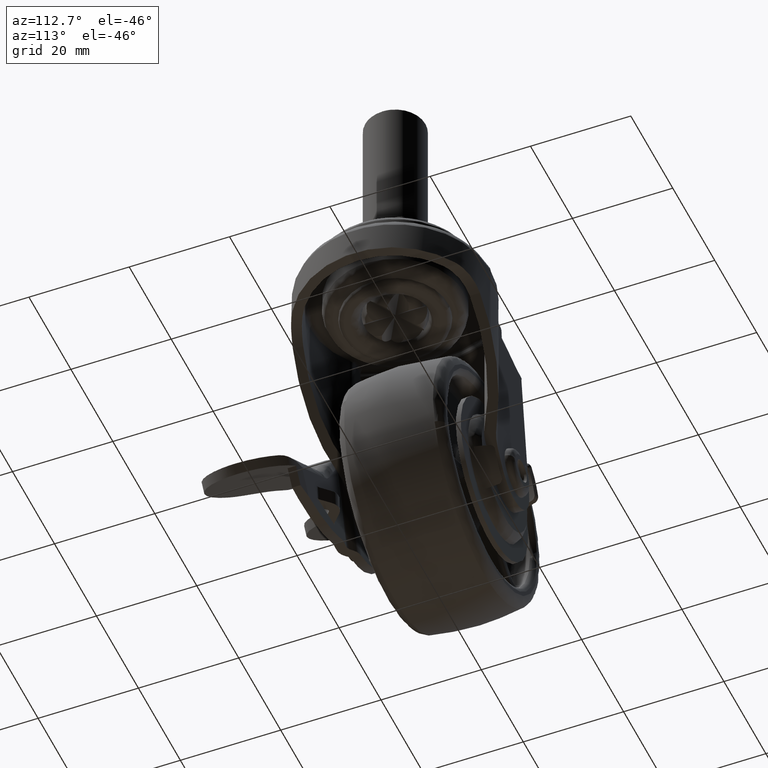
[diagram: clean part render]
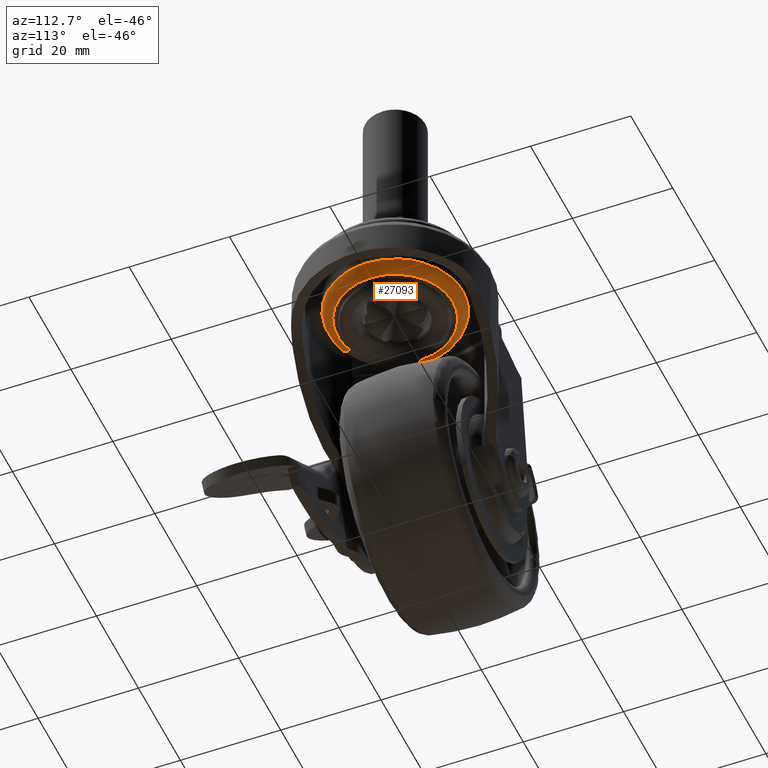
[diagram: same view with one face highlighted and labeled with its STEP entity id]
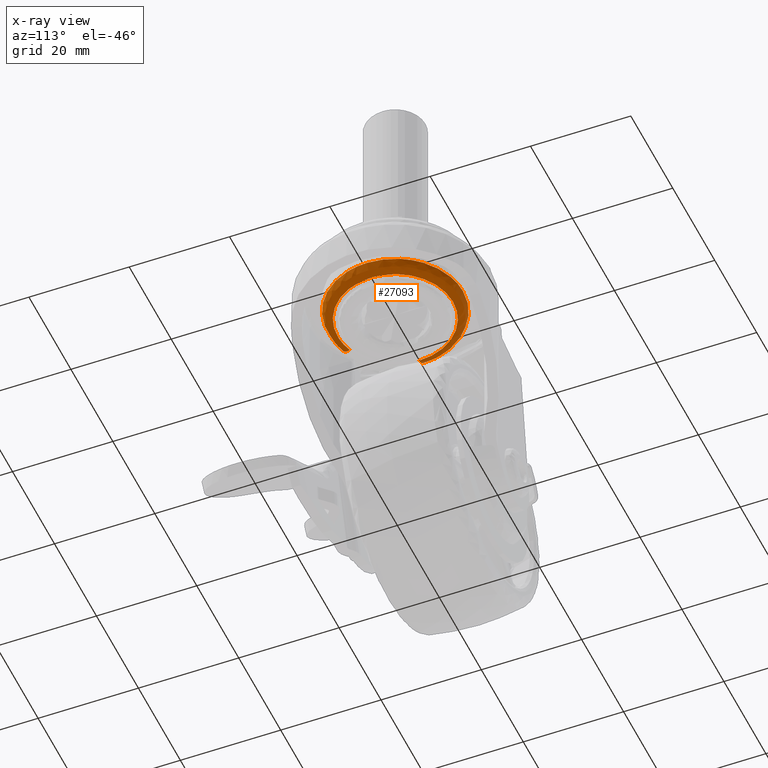
[diagram: x-ray of the same camera — body ghosted, the highlighted face saturated]
A machine part, auxiliary view. The second image highlights one B-rep face of the part: STEP entity #27093.
The next image is the same camera in x-ray: the body ghosted, the highlighted face saturated — about 0% of this face is hidden behind the body in this view.
In plain terms, the highlighted face is a freeform B-spline surface patch.
Its self-contained STEP definition (entity closure, byte-faithful):
#26200=CARTESIAN_POINT('',(30.628880784380691,9.462274842071377,28.716473000111659));
#26201=VERTEX_POINT('',#26200);
#26207=CARTESIAN_POINT('',(20.999998569665529,13.499999999999920,28.716472999999901));
#26208=VERTEX_POINT('',#26207);
#26209=CARTESIAN_POINT('',(30.628880784380691,9.462274842071377,28.716473000111659));
#26210=CARTESIAN_POINT('',(29.924550842241850,10.179287180653290,28.716473000112561));
#26211=CARTESIAN_POINT('',(28.572686183097311,11.277520031610241,28.716473000108369));
#26212=CARTESIAN_POINT('',(26.175660094810581,12.556604331544190,28.716473000086062));
#26213=CARTESIAN_POINT('',(23.708077010605450,13.322258579031830,28.716473000052641));
#26214=CARTESIAN_POINT('',(21.865473694107141,13.500095579423601,28.716473000017221));
#26215=CARTESIAN_POINT('',(20.999998569665529,13.499999999999920,28.716472999999901));
#26216=B_SPLINE_CURVE_WITH_KNOTS('',3,(#26209,#26210,#26211,#26212,#26213,#26214,#26215),.UNSPECIFIED.,.F.,.U.,(4,1,1,1,4),(0.000000017187901,3.015200077645986,5.192847839807891,8.124283217245782,10.720703377675180),.UNSPECIFIED.);
#26217=EDGE_CURVE('',#26201,#26208,#26216,.T.);
#26219=CARTESIAN_POINT('',(7.500000000000004,1.293422E-016,28.716472999419050));
#26220=VERTEX_POINT('',#26219);
#26221=CARTESIAN_POINT('',(20.999998569665529,13.499999999999920,28.716472999999901));
#26222=CARTESIAN_POINT('',(20.364937887052399,13.500028301695311,28.716472999986209));
#26223=CARTESIAN_POINT('',(19.122425687401059,13.412161523786651,28.716472999957670));
#26224=CARTESIAN_POINT('',(17.227195872810871,13.010979399461529,28.716472999908230));
#26225=CARTESIAN_POINT('',(15.278122709957000,12.293319278459220,28.716472999850861));
#26226=CARTESIAN_POINT('',(13.590208623193190,11.337090517780210,28.716472999793961));
#26227=CARTESIAN_POINT('',(11.987658561728880,10.109999056673770,28.716472999733011));
#26228=CARTESIAN_POINT('',(10.468452366051030,8.572205444302741,28.716472999667591));
#26229=CARTESIAN_POINT('',(9.229302812118181,6.729900726146979,28.716472999600061));
#26230=CARTESIAN_POINT('',(8.394573533565202,4.921846476759654,28.716472999544418));
#26231=CARTESIAN_POINT('',(7.713173247385839,2.816252076607755,28.716472999484161));
#26232=CARTESIAN_POINT('',(7.499652781979412,1.132115173780027,28.716472999443290));
#26233=CARTESIAN_POINT('',(7.500000000000004,1.293422E-016,28.716472999419050));
#26234=B_SPLINE_CURVE_WITH_KNOTS('',3,(#26221,#26222,#26223,#26224,#26225,#26226,#26227,#26228,#26229,#26230,#26231,#26232,#26233),.UNSPECIFIED.,.F.,.U.,(4,1,1,1,1,1,1,1,1,1,4),(0.000000065481640,1.905181032948136,3.727569726301859,5.798460383572767,8.117860834744306,9.526053408795455,11.845394851711710,14.578974645375609,16.152843310631411,17.809555774692399,21.205782871239549),.UNSPECIFIED.);
#26235=EDGE_CURVE('',#26208,#26220,#26234,.T.);
#26237=CARTESIAN_POINT('',(16.230423450067111,-12.629376054830670,28.716472999406829));
#26238=VERTEX_POINT('',#26237);
#26252=CARTESIAN_POINT('',(30.462275097684149,-9.628881034458075,28.716473000054840));
#26253=VERTEX_POINT('',#26252);
#26254=CARTESIAN_POINT('',(16.230423450067111,-12.629376054830670,28.716472999406829));
#26255=CARTESIAN_POINT('',(17.053631306574498,-12.940380552033259,28.716472999457508));
#26256=CARTESIAN_POINT('',(18.799939570588329,-13.410993333837130,28.716472999559809));
#26257=CARTESIAN_POINT('',(21.568794925345351,-13.586751649804960,28.716472999706550));
#26258=CARTESIAN_POINT('',(24.315169786629760,-13.184008385076311,28.716472999836430));
#26259=CARTESIAN_POINT('',(26.731447074867958,-12.301959713220191,28.716472999936290));
#26260=CARTESIAN_POINT('',(28.776787924724431,-11.109512531919989,28.716473000008691));
#26261=CARTESIAN_POINT('',(29.920246797944412,-10.161609309824080,28.716473000041560));
#26262=CARTESIAN_POINT('',(30.462275097684149,-9.628881034458075,28.716473000054840));
#26263=B_SPLINE_CURVE_WITH_KNOTS('',3,(#26254,#26255,#26256,#26257,#26258,#26259,#26260,#26261,#26262),.UNSPECIFIED.,.F.,.U.,(4,1,1,1,1,1,4),(0.000000035150485,2.639984452855469,5.399984231782243,8.279964457815233,10.919958127317360,13.079956956094570,15.359943868169310),.UNSPECIFIED.);
#26264=EDGE_CURVE('',#26238,#26253,#26263,.T.);
#26302=CARTESIAN_POINT('',(34.500000000000000,0.0,28.716472999999901));
#26303=VERTEX_POINT('',#26302);
#26304=CARTESIAN_POINT('',(30.462275097684149,-9.628881034458075,28.716473000054840));
#26305=CARTESIAN_POINT('',(31.119498583914009,-8.983209097724673,28.716473000070970));
#26306=CARTESIAN_POINT('',(32.032337948668463,-7.880794138388705,28.716473000087792));
#26307=CARTESIAN_POINT('',(33.098922264012721,-6.075113659006560,28.716473000093320));
#26308=CARTESIAN_POINT('',(33.901014958799458,-4.195377207303133,28.716473000083319));
#26309=CARTESIAN_POINT('',(34.398933990985810,-2.093898018012796,28.716473000051739));
#26310=CARTESIAN_POINT('',(34.500006986213023,-0.614202476683263,28.716473000016592));
#26311=CARTESIAN_POINT('',(34.500000000000000,0.0,28.716472999999901));
#26312=B_SPLINE_CURVE_WITH_KNOTS('',3,(#26304,#26305,#26306,#26307,#26308,#26309,#26310,#26311),.UNSPECIFIED.,.F.,.U.,(4,1,1,1,1,4),(0.000000017179349,2.763931203023015,4.271535497168596,6.281659379103693,8.878082598481365,10.720702082261051),.UNSPECIFIED.);
#26313=EDGE_CURVE('',#26253,#26303,#26312,.T.);
#26315=CARTESIAN_POINT('',(34.500000000000000,0.0,28.716472999999901));
#26316=CARTESIAN_POINT('',(34.500146531393028,0.928377221514458,28.716473000019079));
#26317=CARTESIAN_POINT('',(34.341603796957621,2.457386992453819,28.716473000047099));
#26318=CARTESIAN_POINT('',(33.684885193004433,4.802746384636212,28.716473000081390));
#26319=CARTESIAN_POINT('',(32.586348264856682,7.136678499512458,28.716473000105630));
#26320=CARTESIAN_POINT('',(31.375472901377560,8.702902791694545,28.716473000112192));
#26321=CARTESIAN_POINT('',(30.628880784380691,9.462274842071377,28.716473000111659));
#26322=B_SPLINE_CURVE_WITH_KNOTS('',3,(#26315,#26316,#26317,#26318,#26319,#26320,#26321),.UNSPECIFIED.,.F.,.U.,(4,1,1,1,4),(0.000000016367498,2.785100163188061,4.587235559491046,7.290404444730864,10.485081461577209),.UNSPECIFIED.);
#26323=EDGE_CURVE('',#26303,#26201,#26322,.T.);
#26970=CARTESIAN_POINT('',(16.986030849601683,-10.628600954909604,26.721288314203520));
#26971=CARTESIAN_POINT('',(18.926143226051419,-11.361298631717007,26.721288314203520));
#26972=CARTESIAN_POINT('',(21.0,-11.361298631717020,26.721288314203523));
#26973=CARTESIAN_POINT('',(32.361298631717013,-11.361298631717011,26.721288314203516));
#26974=CARTESIAN_POINT('',(32.361298631717020,-2.086968E-015,26.721288314203523));
#26975=CARTESIAN_POINT('',(32.361298631717013,11.361298631717011,26.721288314203516));
#26976=CARTESIAN_POINT('',(21.000000000000011,11.361298631717020,26.721288314203523));
#26977=CARTESIAN_POINT('',(9.638701368282993,11.361298631717013,26.721288314203516));
#26978=CARTESIAN_POINT('',(9.638701368282989,3.478280E-015,26.721288314203523));
#26979=CARTESIAN_POINT('',(16.175492708773596,-12.774827329554528,26.561801404265438));
#26980=CARTESIAN_POINT('',(18.507370696687751,-13.655478164569338,26.561801404265427));
#26981=CARTESIAN_POINT('',(21.000000000000014,-13.655478164569345,26.561801404265438));
#26982=CARTESIAN_POINT('',(34.655478164569345,-13.655478164569340,26.561801404265431));
#26983=CARTESIAN_POINT('',(34.655478164569345,-2.508388E-015,26.561801404265438));
#26984=CARTESIAN_POINT('',(34.655478164569345,13.655478164569338,26.561801404265431));
#26985=CARTESIAN_POINT('',(21.000000000000014,13.655478164569345,26.561801404265438));
#26986=CARTESIAN_POINT('',(7.344521835430663,13.655478164569345,26.561801404265431));
#26987=CARTESIAN_POINT('',(7.344521835430660,4.180646E-015,26.561801404265438));
#26988=CARTESIAN_POINT('',(16.232143099711816,-12.624822589442813,28.855921086093460));
#26989=CARTESIAN_POINT('',(18.536639680227996,-13.495132635010721,28.855921086093456));
#26990=CARTESIAN_POINT('',(21.0,-13.495132635010727,28.855921086093456));
#26991=CARTESIAN_POINT('',(34.495132635010719,-13.495132635010725,28.855921086093456));
#26992=CARTESIAN_POINT('',(34.495132635010727,-2.478934E-015,28.855921086093456));
#26993=CARTESIAN_POINT('',(34.495132635010727,13.495132635010719,28.855921086093456));
#26994=CARTESIAN_POINT('',(21.0,13.495132635010727,28.855921086093456));
#26995=CARTESIAN_POINT('',(7.504867364989282,13.495132635010725,28.855921086093456));
#26996=CARTESIAN_POINT('',(7.504867364989279,4.131556E-015,28.855921086093456));
#27004=(BOUNDED_SURFACE()B_SPLINE_SURFACE(2,2,((#26970,#26979,#26988),(#26971,#26980,#26989),(#26972,#26981,#26990),(#26973,#26982,#26991),(#26974,#26983,#26992),(#26975,#26984,#26993),(#26976,#26985,#26994),(#26977,#26986,#26995),(#26978,#26987,#26996)),.UNSPECIFIED.,.F.,.F.,.U.)B_SPLINE_SURFACE_WITH_KNOTS((3,2,2,2,3),(3,3),(0.0,5.366272284907400,27.725740138688209,50.085207992469030,72.444675846249837),(0.0,3.644740573938008),.UNSPECIFIED.)GEOMETRIC_REPRESENTATION_ITEM()RATIONAL_B_SPLINE_SURFACE(((0.818097968466972,0.535367198967318,0.813566304666223),(0.851579365586890,0.557277584378973,0.846862239358443),(0.915966667740579,0.599412940939847,0.910892882997328),(0.647686242100209,0.423848955269538,0.644098534501975),(0.915966667740579,0.599412940939847,0.910892882997328),(0.647686242100209,0.423848955269538,0.644098534501975),(0.915966667740579,0.599412940939847,0.910892882997328),(0.647686242100209,0.423848955269538,0.644098534501975),(0.915966667740579,0.599412940939847,0.910892882997328)))REPRESENTATION_ITEM('')SURFACE());
#27005=CARTESIAN_POINT('',(32.500000000000000,0.0,26.716472999999901));
#27006=VERTEX_POINT('',#27005);
#27007=CARTESIAN_POINT('',(16.937027378156809,-10.758357392285760,26.716472999999901));
#27008=VERTEX_POINT('',#27007);
#27009=CARTESIAN_POINT('',(32.500000000000000,0.0,26.716472999999901));
#27010=CARTESIAN_POINT('',(32.500386833020777,-1.041458714558650,26.716472999999969));
#27011=CARTESIAN_POINT('',(32.286287187136558,-2.603365869917402,26.716472999999819));
#27012=CARTESIAN_POINT('',(31.590766746388979,-4.571744939434582,26.716472999999969));
#27013=CARTESIAN_POINT('',(30.728252973513801,-6.247493244463357,26.716472999999780));
#27014=CARTESIAN_POINT('',(29.473257388001059,-7.888897088273307,26.716473000000040));
#27015=CARTESIAN_POINT('',(27.920062531188481,-9.245655998591261,26.716472999999620));
#27016=CARTESIAN_POINT('',(26.470252048188609,-10.153695137318691,26.716473000000139));
#27017=CARTESIAN_POINT('',(24.966672577827261,-10.838770231511390,26.716472999999649));
#27018=CARTESIAN_POINT('',(23.488254686428881,-11.264462023998890,26.716473000000430));
#27019=CARTESIAN_POINT('',(21.882914171831381,-11.498064276042760,26.716472999999649));
#27020=CARTESIAN_POINT('',(20.345546630718228,-11.523034372309841,26.716473000000018));
#27021=CARTESIAN_POINT('',(18.620289313294169,-11.295817517423650,26.716472999999802));
#27022=CARTESIAN_POINT('',(17.505321314403599,-10.973016779173980,26.716473000000100));
#27023=CARTESIAN_POINT('',(16.937027378156809,-10.758357392285760,26.716472999999901));
#27024=B_SPLINE_CURVE_WITH_KNOTS('',3,(#27009,#27010,#27011,#27012,#27013,#27014,#27015,#27016,#27017,#27018,#27019,#27020,#27021,#27022,#27023),.UNSPECIFIED.,.F.,.U.,(4,1,1,1,1,1,1,1,1,1,1,1,4),(0.000000109854003,3.124240566455150,4.686364144381091,6.248488521566209,8.765250695280257,10.848078348398690,12.410149424031401,13.885521444569710,15.794777345311040,17.009770290377261,18.745465338482141,20.394392504881800,22.216841551666320),.UNSPECIFIED.);
#27025=EDGE_CURVE('',#27006,#27008,#27024,.T.);
#27026=ORIENTED_EDGE('',*,*,#27025,.F.);
#27027=CARTESIAN_POINT('',(21.000000751192371,11.499999999999980,26.716472999999912));
#27028=VERTEX_POINT('',#27027);
#27029=CARTESIAN_POINT('',(21.000000751192371,11.499999999999980,26.716472999999912));
#27030=CARTESIAN_POINT('',(21.846769398953992,11.500149465891280,26.716472999999951));
#27031=CARTESIAN_POINT('',(23.257961342300550,11.343403424052809,26.716472999999880));
#27032=CARTESIAN_POINT('',(25.063499459393761,10.795642255810950,26.716472999999912));
#27033=CARTESIAN_POINT('',(26.391834922591670,10.187194440065710,26.716472999999901));
#27034=CARTESIAN_POINT('',(27.801047407162379,9.330856470805971,26.716472999999919));
#27035=CARTESIAN_POINT('',(29.139272940329150,8.204829083608098,26.716472999999912));
#27036=CARTESIAN_POINT('',(30.293242403136318,6.833246788329228,26.716472999999901));
#27037=CARTESIAN_POINT('',(31.251486002803901,5.320171562978792,26.716472999999919));
#27038=CARTESIAN_POINT('',(31.903298878013761,3.799580270913851,26.716472999999830));
#27039=CARTESIAN_POINT('',(32.384106298678297,1.928682907214608,26.716473000000100));
#27040=CARTESIAN_POINT('',(32.500093244581912,0.752677810148903,26.716472999999691));
#27041=CARTESIAN_POINT('',(32.500000000000000,0.0,26.716472999999901));
#27042=B_SPLINE_CURVE_WITH_KNOTS('',3,(#27029,#27030,#27031,#27032,#27033,#27034,#27035,#27036,#27037,#27038,#27039,#27040,#27041),.UNSPECIFIED.,.F.,.U.,(4,1,1,1,1,1,1,1,1,1,4),(0.000000020975921,2.540282444890849,4.233812216090959,5.645092117483747,6.915245005597736,9.173258589443503,10.866774150488730,12.278054267923560,14.536095838266201,15.806248215471211,18.064270679922060),.UNSPECIFIED.);
#27043=EDGE_CURVE('',#27028,#27006,#27042,.T.);
#27044=ORIENTED_EDGE('',*,*,#27043,.F.);
#27045=CARTESIAN_POINT('',(9.499999998902773,4.911317E-016,26.716472999999901));
#27046=VERTEX_POINT('',#27045);
#27047=CARTESIAN_POINT('',(9.499999998902773,4.911317E-016,26.716472999999901));
#27048=CARTESIAN_POINT('',(9.499958322985872,0.611546697997801,26.716472999999869));
#27049=CARTESIAN_POINT('',(9.597785107873317,1.834628651644207,26.716472999999912));
#27050=CARTESIAN_POINT('',(10.022835803911780,3.576813532697654,26.716472999999940));
#27051=CARTESIAN_POINT('',(10.816959200325240,5.494397581174980,26.716472999999962));
#27052=CARTESIAN_POINT('',(11.937979887336819,7.194645952648046,26.716472999999748));
#27053=CARTESIAN_POINT('',(13.222898806378231,8.511184190088441,26.716472999999951));
#27054=CARTESIAN_POINT('',(14.546619253098580,9.570748177976260,26.716473000000040));
#27055=CARTESIAN_POINT('',(16.016826837921940,10.427612040646320,26.716472999999350));
#27056=CARTESIAN_POINT('',(17.564366961908011,11.002752290408511,26.716473000000139));
#27057=CARTESIAN_POINT('',(19.165400427544650,11.393369856346171,26.716472999999830));
#27058=CARTESIAN_POINT('',(20.247320232228311,11.500114640660190,26.716473000000079));
#27059=CARTESIAN_POINT('',(21.000000751192371,11.499999999999980,26.716472999999912));
#27060=B_SPLINE_CURVE_WITH_KNOTS('',3,(#27047,#27048,#27049,#27050,#27051,#27052,#27053,#27054,#27055,#27056,#27057,#27058,#27059),.UNSPECIFIED.,.F.,.U.,(4,1,1,1,1,1,1,1,1,1,4),(0.000000020717938,1.834645574655813,3.669301942332854,5.362836071704070,8.044263690060870,9.737758520406345,10.866774660655519,13.124821677892500,14.818352454932119,15.806248957155200,18.064271527314670),.UNSPECIFIED.);
#27061=EDGE_CURVE('',#27046,#27028,#27060,.T.);
#27062=ORIENTED_EDGE('',*,*,#27061,.F.);
#27063=CARTESIAN_POINT('',(9.499999998902773,4.911317E-016,26.716472999999901));
#27064=CARTESIAN_POINT('',(9.254523948358525,5.851887E-016,26.716243086388861));
#27065=CARTESIAN_POINT('',(8.878356411026690,6.894393E-016,26.786663598081748));
#27066=CARTESIAN_POINT('',(8.423107805722546,7.344550E-016,27.015893828768601));
#27067=CARTESIAN_POINT('',(8.060115800490433,7.137783E-016,27.299055636632339));
#27068=CARTESIAN_POINT('',(7.754849279856805,6.101356E-016,27.690247859307618));
#27069=CARTESIAN_POINT('',(7.546701851721379,4.065188E-016,28.192903849189911));
#27070=CARTESIAN_POINT('',(7.499937493662881,2.307971E-016,28.536480361214981));
#27071=CARTESIAN_POINT('',(7.500000000000004,1.293422E-016,28.716472999419050));
#27072=B_SPLINE_CURVE_WITH_KNOTS('',3,(#27063,#27064,#27065,#27066,#27067,#27068,#27069,#27070,#27071),.UNSPECIFIED.,.F.,.U.,(4,1,1,1,1,1,4),(0.000000139752240,0.736326766636776,1.129054906057272,1.521764980391108,2.110798978882277,2.601708322409052,3.141671488102528),.UNSPECIFIED.);
#27073=EDGE_CURVE('',#27046,#26220,#27072,.T.);
#27074=ORIENTED_EDGE('',*,*,#27073,.T.);
#27075=ORIENTED_EDGE('',*,*,#26235,.F.);
#27076=ORIENTED_EDGE('',*,*,#26217,.F.);
#27077=ORIENTED_EDGE('',*,*,#26323,.F.);
#27078=ORIENTED_EDGE('',*,*,#26313,.F.);
#27079=ORIENTED_EDGE('',*,*,#26264,.F.);
#27080=CARTESIAN_POINT('',(16.937027378156809,-10.758357392285760,26.716472999999901));
#27081=CARTESIAN_POINT('',(16.861873577569110,-10.957357366494559,26.716377144331791));
#27082=CARTESIAN_POINT('',(16.705799899317181,-11.370625327712119,26.787550697620759));
#27083=CARTESIAN_POINT('',(16.504007817835110,-11.904951186094230,27.092778720717611));
#27084=CARTESIAN_POINT('',(16.367038336779089,-12.267633086189811,27.500190732140641));
#27085=CARTESIAN_POINT('',(16.261082235205699,-12.548194565638500,28.029505483050400));
#27086=CARTESIAN_POINT('',(16.230293734833069,-12.629719528197191,28.438233432026959));
#27087=CARTESIAN_POINT('',(16.230423450067111,-12.629376054830670,28.716472999406829));
#27088=B_SPLINE_CURVE_WITH_KNOTS('',3,(#27080,#27081,#27082,#27083,#27084,#27085,#27086,#27087),.UNSPECIFIED.,.F.,.U.,(4,1,1,1,1,4),(0.000000139770910,0.638150545180013,1.325416228113311,1.914453312179566,2.307162306005994,3.141671483918389),.UNSPECIFIED.);
#27089=EDGE_CURVE('',#27008,#26238,#27088,.T.);
#27090=ORIENTED_EDGE('',*,*,#27089,.F.);
#27091=EDGE_LOOP('',(#27026,#27044,#27062,#27074,#27075,#27076,#27077,#27078,#27079,#27090));
#27092=FACE_OUTER_BOUND('',#27091,.T.);
#27093=ADVANCED_FACE('',(#27092),#27004,.T.);